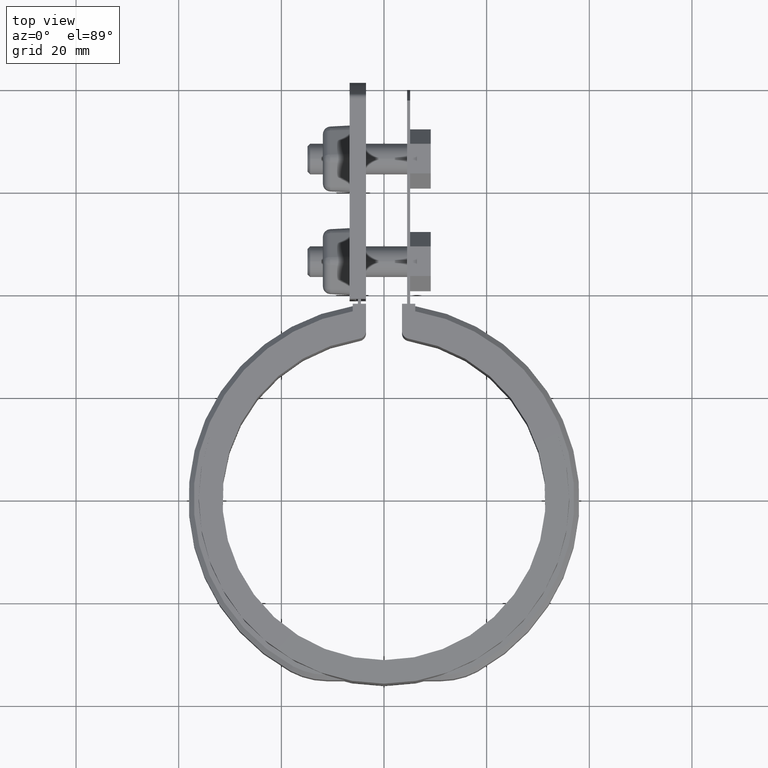
[diagram: clean part render]
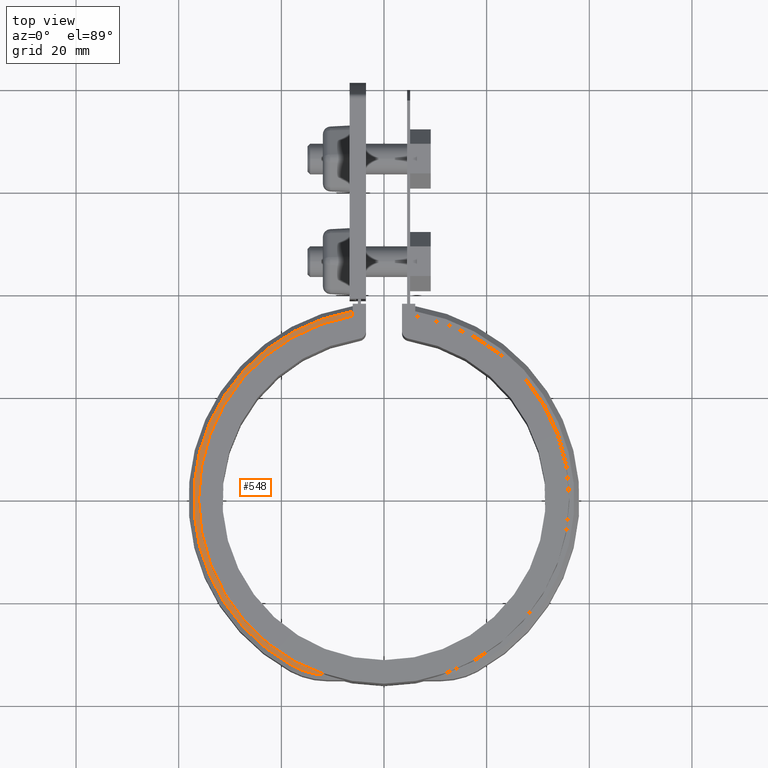
[diagram: same view with one face highlighted and labeled with its STEP entity id]
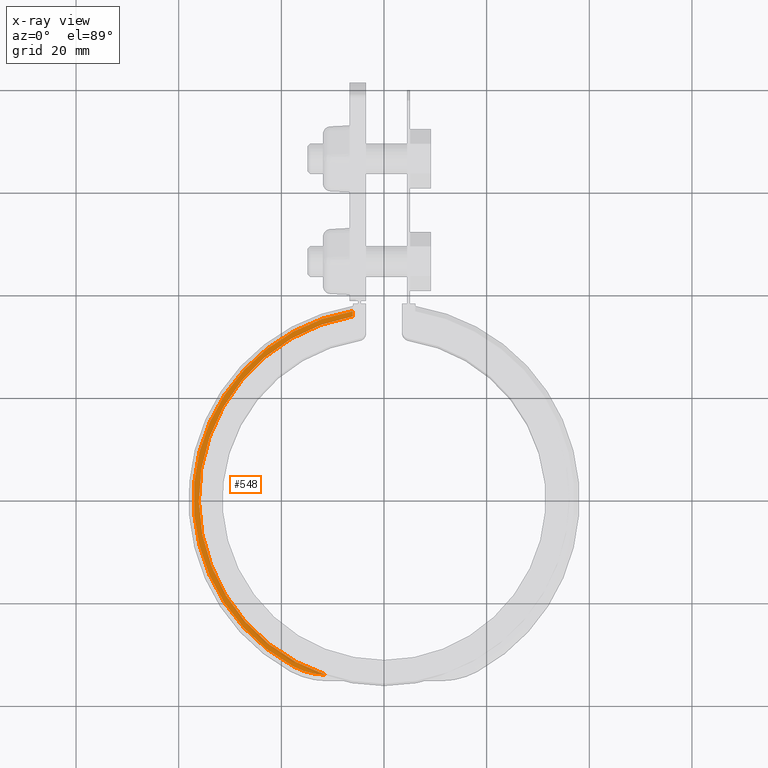
[diagram: x-ray of the same camera — body ghosted, the highlighted face saturated]
A machine part, top view. The second image highlights one B-rep face of the part: STEP entity #548.
The next image is the same camera in x-ray: the body ghosted, the highlighted face saturated — about 0% of this face is hidden behind the body in this view.
In plain terms, the highlighted planar face has unit normal (0, 0, -1).
Its self-contained STEP definition (entity closure, byte-faithful):
#548 = ADVANCED_FACE( '', ( #1002 ), #1003, .F. );
#1002 = FACE_OUTER_BOUND( '', #1764, .T. );
#1003 = PLANE( '', #1765 );
#1764 = EDGE_LOOP( '', ( #4602, #4603, #4604, #4605 ) );
#1765 = AXIS2_PLACEMENT_3D( '', #4606, #4607, #4608 );
#4602 = ORIENTED_EDGE( '', *, *, #7090, .T. );
#4603 = ORIENTED_EDGE( '', *, *, #7087, .T. );
#4604 = ORIENTED_EDGE( '', *, *, #7091, .T. );
#4605 = ORIENTED_EDGE( '', *, *, #7115, .T. );
#4606 = CARTESIAN_POINT( '', ( 0.000000000000000, 0.000000000000000, -5.00000000000000 ) );
#4607 = DIRECTION( '', ( 0.000000000000000, 0.000000000000000, -1.00000000000000 ) );
#4608 = DIRECTION( '', ( -0.211302589262072, -0.977420695387173, 0.000000000000000 ) );
#7087 = EDGE_CURVE( '', #8163, #8167, #8169, .F. );
#7090 = EDGE_CURVE( '', #8171, #8163, #8174, .F. );
#7091 = EDGE_CURVE( '', #8167, #8175, #8176, .T. );
#7115 = EDGE_CURVE( '', #8175, #8171, #8219, .T. );
#8163 = VERTEX_POINT( '', #10837 );
#8167 = VERTEX_POINT( '', #10842 );
#8169 = CIRCLE( '', #10847, 14.0000000000000 );
#8171 = VERTEX_POINT( '', #10849 );
#8174 = CIRCLE( '', #10855, 37.0950000000000 );
#8175 = VERTEX_POINT( '', #10856 );
#8176 = CIRCLE( '', #10857, 36.0950000000000 );
#8219 = LINE( '', #10923, #10924 );
#10837 = CARTESIAN_POINT( '', ( -17.7482832988825, -32.5735700368045, -5.00000000000000 ) );
#10842 = CARTESIAN_POINT( '', ( -11.3090708499141, -34.2776011633198, -5.00000000000000 ) );
#10847 = AXIS2_PLACEMENT_3D( '', #13787, #13788, #13789 );
#10849 = CARTESIAN_POINT( '', ( -6.09999999999994, 36.5900126400634, -5.00000000000000 ) );
#10855 = AXIS2_PLACEMENT_3D( '', #13793, #13794, #13795 );
#10856 = CARTESIAN_POINT( '', ( -6.09999999999993, 35.5758207916557, -5.00000000000000 ) );
#10857 = AXIS2_PLACEMENT_3D( '', #13796, #13797, #13798 );
#10923 = CARTESIAN_POINT( '', ( -6.09999999999994, 35.5758207916557, -5.00000000000000 ) );
#10924 = VECTOR( '', #13834, 1000.00000000000 );
#13787 = CARTESIAN_POINT( '', ( -11.0499151580454, -20.2800000000000, -5.00000000000000 ) );
#13788 = DIRECTION( '', ( 0.000000000000000, 0.000000000000000, -1.00000000000000 ) );
#13789 = DIRECTION( '', ( -1.00000000000000, 0.000000000000000, 0.000000000000000 ) );
#13793 = CARTESIAN_POINT( '', ( 0.000000000000000, 0.000000000000000, -5.00000000000000 ) );
#13794 = DIRECTION( '', ( 0.000000000000000, 0.000000000000000, -1.00000000000000 ) );
#13795 = DIRECTION( '', ( -1.00000000000000, 0.000000000000000, 0.000000000000000 ) );
#13796 = CARTESIAN_POINT( '', ( 0.000000000000000, 0.000000000000000, -5.00000000000000 ) );
#13797 = DIRECTION( '', ( 0.000000000000000, 0.000000000000000, -1.00000000000000 ) );
#13798 = DIRECTION( '', ( 1.00000000000000, 5.55111512312578E-017, 0.000000000000000 ) );
#13834 = DIRECTION( '', ( 5.55111512312578E-017, 1.00000000000000, 0.000000000000000 ) );